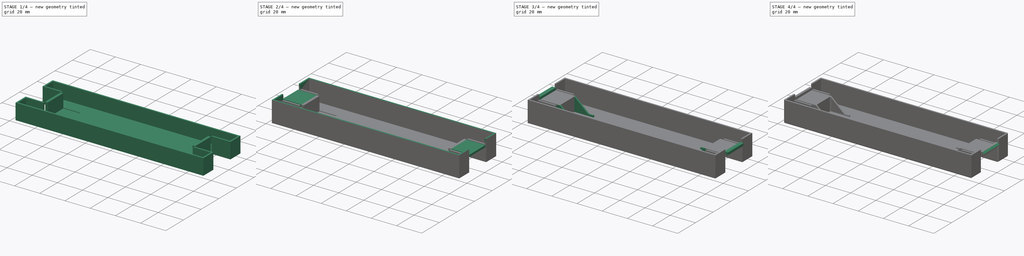
[diagram: build sequence overview — one tinted view per stage of 4, left to right]
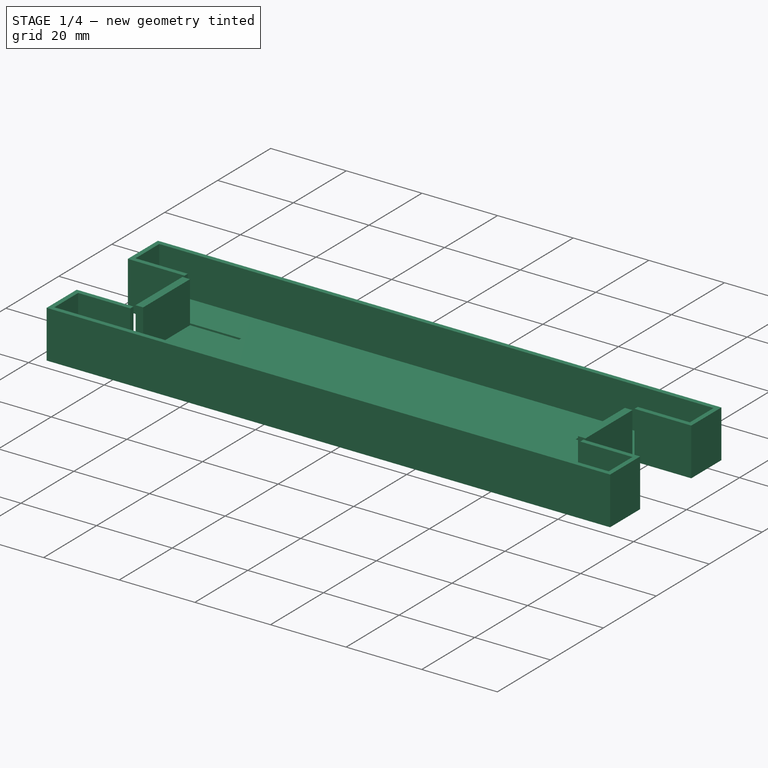
[diagram: stage 1 of 4 — iso view after this stage's code; geometry added in this stage tinted green]
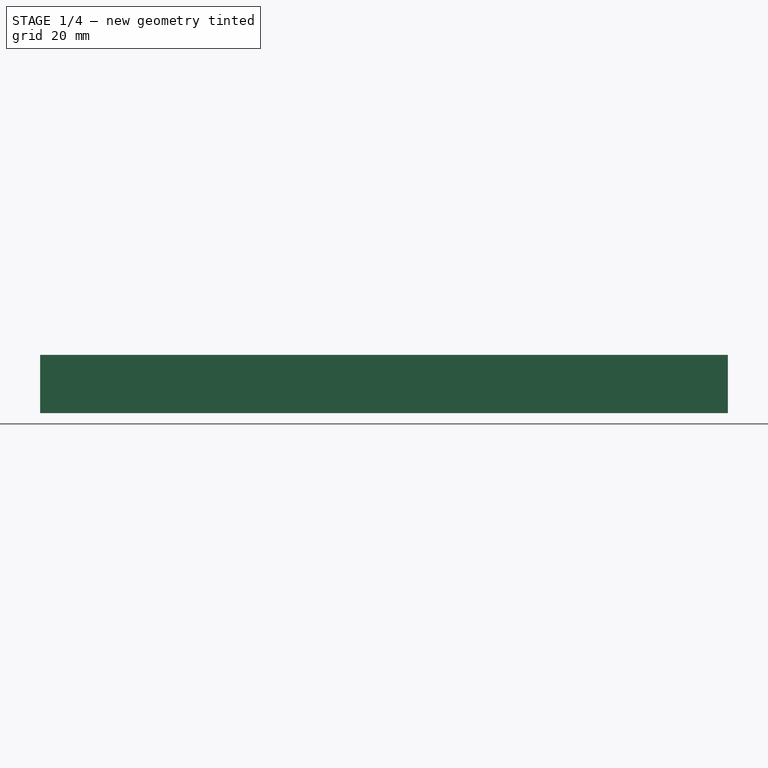
[diagram: stage 1 of 4 — front view after this stage's code; geometry added in this stage tinted green]
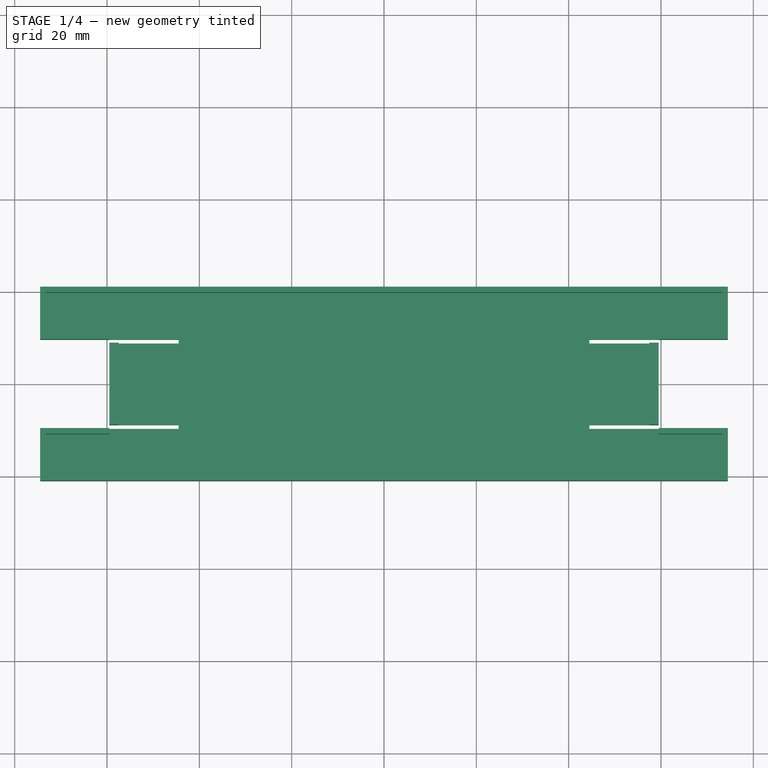
[diagram: stage 1 of 4 — top view after this stage's code; geometry added in this stage tinted green]
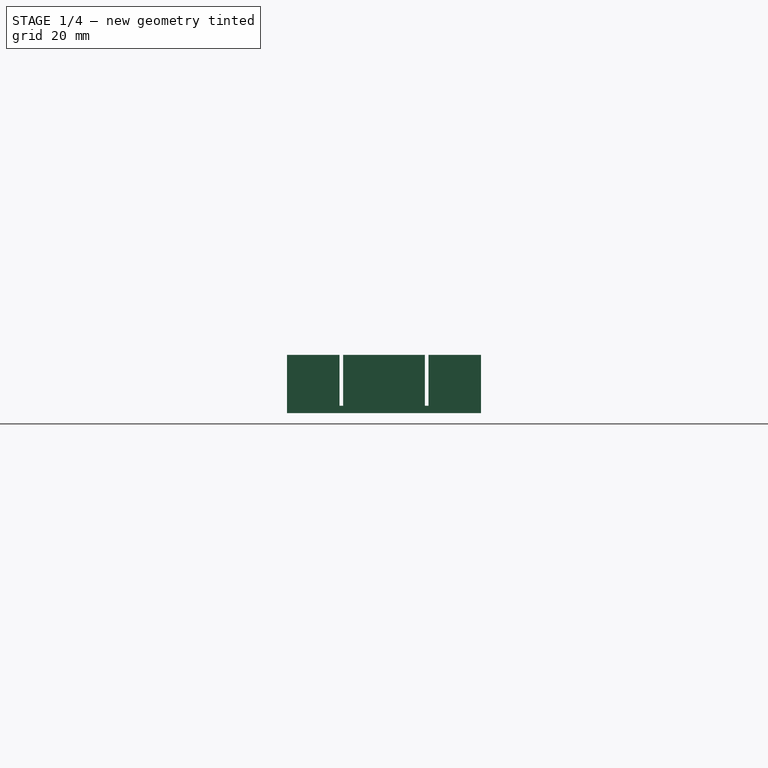
[diagram: stage 1 of 4 — right view after this stage's code; geometry added in this stage tinted green]
FCSTD DOCUMENT  (FreeCAD 1.0R39285 (Git))
Label: PcCaseFrontPanelPlug
License: All rights reserved
LicenseURL: http://en.wikipedia.org/wiki/All_rights_reserved
objects: Sketcher::SketchObject×8, PartDesign::Pad×7, PartDesign::Plane×2, PartDesign::Chamfer×1, PartDesign::Fillet×1, PartDesign::Body×1
note: 46 computed .brp shape members not serialized (recipe doc carries the construction recipe); baked Part::Feature solids carry a one-line shape summary decoded from their .brp

FEATURE [Sketcher::SketchObject] Sketch  label="Template"
  ArcFitTolerance = 0
  AttachmentSupport = -> [XY_Plane]
  FullyConstrained = true
  MakeInternals = false
  MapMode = 5
  sketch-geometry (33):
    g0: LineSegment StartX=-74.5 StartY=21 StartZ=0 EndX=74.5 EndY=21 EndZ=0
    g1: LineSegment StartX=74.5 StartY=-21 StartZ=0 EndX=-74.5 EndY=-21 EndZ=0
    g2: LineSegment StartX=-76 StartY=8.85 StartZ=0 EndX=-74.5 EndY=8.85 EndZ=0
    g3: LineSegment StartX=76 StartY=8.85 StartZ=0 EndX=76 EndY=-8.85 EndZ=0
    g4: LineSegment StartX=76 StartY=-8.85 StartZ=0 EndX=74.5 EndY=-8.85 EndZ=0
    g5: LineSegment StartX=-76 StartY=-8.85 StartZ=0 EndX=-76 EndY=8.85 EndZ=0
    g6: GeomPoint [constr] X=0 Y=0 Z=0
    g7: LineSegment StartX=74.5 StartY=8.85 StartZ=0 EndX=76 EndY=8.85 EndZ=0
    g8: LineSegment StartX=-74.5 StartY=-8.85 StartZ=0 EndX=-76 EndY=-8.85 EndZ=0
    g9: LineSegment StartX=-74.5 StartY=8.85 StartZ=0 EndX=-74.5 EndY=21 EndZ=0
    g10: LineSegment StartX=-74.5 StartY=-21 StartZ=0 EndX=-74.5 EndY=-8.85 EndZ=0
    g11: LineSegment [constr] StartX=-74.5 StartY=-8.85 StartZ=0 EndX=-74.5 EndY=8.85 EndZ=0
    g12: LineSegment StartX=74.5 StartY=21 StartZ=0 EndX=74.5 EndY=8.85 EndZ=0
    g13: LineSegment [constr] StartX=74.5 StartY=8.85 StartZ=0 EndX=74.5 EndY=-8.85 EndZ=0
    g14: LineSegment StartX=74.5 StartY=-8.85 StartZ=0 EndX=74.5 EndY=-21 EndZ=0
    g15: LineSegment StartX=-74.5 StartY=8.85 StartZ=0 EndX=-59.5 EndY=8.85 EndZ=0
    g16: LineSegment StartX=-59.5 StartY=8.85 StartZ=0 EndX=-59.5 EndY=-8.85 EndZ=0
    g17: LineSegment StartX=-59.5 StartY=-8.85 StartZ=0 EndX=-74.5 EndY=-8.85 EndZ=0
    g18: LineSegment StartX=74.5 StartY=8.85 StartZ=0 EndX=59.5 EndY=8.85 EndZ=0
    g19: LineSegment StartX=59.5 StartY=8.85 StartZ=0 EndX=59.5 EndY=-8.85 EndZ=0
    g20: LineSegment StartX=59.5 StartY=-8.85 StartZ=0 EndX=74.5 EndY=-8.85 EndZ=0
    g21: LineSegment StartX=-74.5 StartY=9.65 StartZ=0 EndX=-44.5 EndY=9.65 EndZ=0
    g22: LineSegment StartX=-44.5 StartY=9.65 StartZ=0 EndX=-44.5 EndY=8.85 EndZ=0
    g23: LineSegment StartX=-44.5 StartY=8.85 StartZ=0 EndX=-59.5 EndY=8.85 EndZ=0
    g24: LineSegment StartX=-74.5 StartY=-9.65 StartZ=0 EndX=-44.5 EndY=-9.65 EndZ=0
    g25: LineSegment StartX=-44.5 StartY=-9.65 StartZ=0 EndX=-44.5 EndY=-8.85 EndZ=0
    g26: LineSegment StartX=-44.5 StartY=-8.85 StartZ=0 EndX=-59.5 EndY=-8.85 EndZ=0
    g27: LineSegment StartX=74.5 StartY=9.65 StartZ=0 EndX=44.5 EndY=9.65 EndZ=0
    g28: LineSegment StartX=44.5 StartY=9.65 StartZ=0 EndX=44.5 EndY=8.85 EndZ=0
    g29: LineSegment StartX=44.5 StartY=8.85 StartZ=0 EndX=59.5 EndY=8.85 EndZ=0
    g30: LineSegment StartX=74.5 StartY=-9.65 StartZ=0 EndX=44.5 EndY=-9.65 EndZ=0
    g31: LineSegment StartX=44.5 StartY=-9.65 StartZ=0 EndX=44.5 EndY=-8.85 EndZ=0
    g32: LineSegment StartX=44.5 StartY=-8.85 StartZ=0 EndX=59.5 EndY=-8.85 EndZ=0
  constraints (91):
    c: Coincident(g0,g12)
    c: Coincident(g14,g1)
    c: Coincident(g1,g10)
    c: Coincident(g9,g0)
    c: Horizontal(g0)
    c: Horizontal(g1)
    c: Coincident(g7,g3)
    c: Coincident(g3,g4)
    c: Coincident(g8,g5)
    c: Coincident(g5,g2)
    c: Horizontal(g2)
    c: Horizontal(g4)
    c: Vertical(g3)
    c: Vertical(g5)
    c: DistanceX(g0,g0) = 149
    c: Symmetric(g1,g0,g6)
    c: Symmetric(g8,g7,g6)
    c: DistanceY(g5,g5) = 17.7
    c: DistanceY(g10,g9) = 42
    c: Horizontal(g7)
    c: Horizontal(g8)
    c: Equal(g5,g3)
    c: PointOnObject(g2,g7)
    c: Coincident(g-1,g6)  '__ANCHOR__'
    c: Coincident(g11,g9)
    c: Vertical(g9)
    c: Coincident(g10,g11)
    c: Vertical(g10)
    c: Vertical(g11)
    c: Coincident(g10,g8)
    c: Coincident(g9,g2)
    c: Coincident(g12,g13)
    c: Vertical(g12)
    c: PointOnObject(g4,g12)
    c: Coincident(g13,g14)
    c: Vertical(g14)
    c: Coincident(g4,g13)
    c: Coincident(g12,g7)
    c: Coincident(g2,g15)
    c: Horizontal(g15)
    c: Coincident(g15,g16)
    c: Vertical(g16)
    c: Coincident(g16,g17)
    c: Coincident(g17,g8)
    c: Horizontal(g17)
    c: DistanceX(g15,g15) = 15
    c: Coincident(g7,g18)
    c: Horizontal(g18)
    c: Coincident(g18,g19)
    c: Vertical(g19)
    c: Coincident(g19,g20)
    c: Coincident(g20,g4)
    c: Horizontal(g20)
    c: Equal(g18,g15)
    c: PointOnObject(g21,g9)
    c: Horizontal(g21)
    c: Coincident(g21,g22)
    c: Vertical(g22)
    c: Coincident(g22,g23)
    c: Coincident(g23,g15)
    c: Horizontal(g23)
    c: PointOnObject(g24,g10)
    c: Horizontal(g24)
    c: Coincident(g24,g25)
    c: Vertical(g25)
    c: Coincident(g25,g26)
    c: Coincident(g26,g16)
    c: Horizontal(g26)
    c: Equal(g24,g21)
    c: Equal(g22,g25)
    c: DistanceY(g22,g22) = 0.8
    c: PointOnObject(g27,g12)
    c: Horizontal(g27)
    c: Coincident(g27,g28)
    c: Vertical(g28)
    c: Coincident(g28,g29)
    c: Coincident(g29,g18)
    c: Horizontal(g29)
    c: PointOnObject(g30,g14)
    c: Horizontal(g30)
    c: Coincident(g30,g31)
    c: Vertical(g31)
    c: Coincident(g31,g32)
    c: Coincident(g32,g19)
    c: Horizontal(g32)
    c: Equal(g24,g30)
    c: Equal(g30,g27)
    c: Equal(g25,g31)
    c: Equal(g31,g28)
    c: DistanceX(g2,g0) = 1.5
    c: DistanceX(g15,g21) = 15
FEATURE [Sketcher::SketchObject] Sketch001
  ArcFitTolerance = 0
  AttachmentSupport = -> [XY_Plane]
  ExternalGeometry = -> [Sketch]
  FullyConstrained = true
  MakeInternals = false
  MapMode = 5
  sketch-geometry (20):
    g0: LineSegment StartX=-44.5 StartY=-9.65 StartZ=0 EndX=-74.5 EndY=-9.65 EndZ=0
    g1: LineSegment StartX=-74.5 StartY=-9.65 StartZ=0 EndX=-74.5 EndY=-21 EndZ=0
    g2: LineSegment StartX=-74.5 StartY=-21 StartZ=0 EndX=74.5 EndY=-21 EndZ=0
    g3: LineSegment StartX=74.5 StartY=-21 StartZ=0 EndX=74.5 EndY=-9.65 EndZ=0
    g4: LineSegment StartX=74.5 StartY=-9.65 StartZ=0 EndX=44.5 EndY=-9.65 EndZ=0
    g5: LineSegment StartX=44.5 StartY=-8.85 StartZ=0 EndX=59.5 EndY=-8.85 EndZ=0
    g6: LineSegment StartX=59.5 StartY=-8.85 StartZ=0 EndX=59.5 EndY=8.85 EndZ=0
    g7: LineSegment StartX=59.5 StartY=8.85 StartZ=0 EndX=44.5 EndY=8.85 EndZ=0
    g8: LineSegment StartX=44.5 StartY=9.65 StartZ=0 EndX=74.5 EndY=9.65 EndZ=0
    g9: LineSegment StartX=74.5 StartY=9.65 StartZ=0 EndX=74.5 EndY=21 EndZ=0
    g10: LineSegment StartX=74.5 StartY=21 StartZ=0 EndX=-74.5 EndY=21 EndZ=0
    g11: LineSegment StartX=-74.5 StartY=21 StartZ=0 EndX=-74.5 EndY=9.65 EndZ=0
    g12: LineSegment StartX=-74.5 StartY=9.65 StartZ=0 EndX=-44.5 EndY=9.65 EndZ=0
    g13: LineSegment StartX=-44.5 StartY=8.85 StartZ=0 EndX=-59.5 EndY=8.85 EndZ=0
    g14: LineSegment StartX=-59.5 StartY=8.85 StartZ=0 EndX=-59.5 EndY=-8.85 EndZ=0
    g15: LineSegment StartX=-59.5 StartY=-8.85 StartZ=0 EndX=-44.5 EndY=-8.85 EndZ=0
    g16: LineSegment StartX=-44.5 StartY=8.85 StartZ=0 EndX=-44.5 EndY=9.65 EndZ=0
    g17: LineSegment StartX=-44.5 StartY=-9.65 StartZ=0 EndX=-44.5 EndY=-8.85 EndZ=0
    g18: LineSegment StartX=44.5 StartY=8.85 StartZ=0 EndX=44.5 EndY=9.65 EndZ=0
    g19: LineSegment StartX=44.5 StartY=-9.65 StartZ=0 EndX=44.5 EndY=-8.85 EndZ=0
  constraints (40):
    c: Coincident(g0,g-3)
    c: Coincident(g0,g1)
    c: Coincident(g1,g-9)
    c: Coincident(g1,g2)
    c: Coincident(g2,g-9)
    c: Coincident(g2,g3)
    c: Coincident(g3,g-10)
    c: Coincident(g3,g4)
    c: Coincident(g5,g-12)
    c: Coincident(g5,g6)
    c: Coincident(g6,g-13)
    c: Coincident(g6,g7)
    c: Coincident(g8,g-15)
    c: Coincident(g8,g9)
    c: Coincident(g9,g-16)
    c: Coincident(g9,g10)
    c: Coincident(g10,g-16)
    c: Coincident(g10,g11)
    c: Coincident(g11,g-4)
    c: Coincident(g11,g12)
    c: Coincident(g13,g-5)
    c: Coincident(g13,g14)
    c: Coincident(g14,g-6)
    c: Coincident(g14,g15)
    c: Coincident(g12,g-7)
    c: Coincident(g13,g-7)
    c: Coincident(g16,g13)
    c: Coincident(g16,g12)
    c: Coincident(g15,g-8)
    c: Coincident(g0,g-8)
    c: Coincident(g17,g0)
    c: Coincident(g17,g15)
    c: Coincident(g8,g-15)
    c: Coincident(g7,g-14)
    c: Coincident(g18,g7)
    c: Coincident(g18,g8)
    c: Coincident(g19,g4)
    c: Coincident(g19,g5)
    c: Coincident(g5,g-12)
    c: Coincident(g4,g-11)
FEATURE [PartDesign::Pad] Pad
  Direction = (0,0,1)
  Length = 1.6
  Length2 = 10
  Profile = -> Sketch001
  ReferenceAxis = -> Sketch001 [N_Axis]
  Suppressed = false
  Type = 0
FEATURE [Sketcher::SketchObject] Sketch002
  ArcFitTolerance = 0
  AttachmentOffset = pos=(0,0,1.6) rot=(0,0,1;0rad)
  AttachmentSupport = -> [XY_Plane]
  ExternalGeometry = -> [Sketch]
  FullyConstrained = true
  MakeInternals = false
  MapMode = 5
  Placement = pos=(0,0,1.6) rot=(0,0,1;0rad)
  expr: .AttachmentOffset.Base.z = <<Sketch001>>.AttachmentOffset.Base.z + <<Pad>>.Length
  sketch-geometry (38):
    g0: LineSegment StartX=59.5 StartY=9.65 StartZ=0 EndX=74.5 EndY=9.65 EndZ=0
    g1: LineSegment StartX=74.5 StartY=9.65 StartZ=0 EndX=74.5 EndY=21 EndZ=0
    g2: LineSegment StartX=74.5 StartY=21 StartZ=0 EndX=-74.5 EndY=21 EndZ=0
    g3: LineSegment StartX=-74.5 StartY=21 StartZ=0 EndX=-74.5 EndY=9.65 EndZ=0
    g4: LineSegment StartX=-74.5 StartY=9.65 StartZ=0 EndX=-59.5 EndY=9.65 EndZ=0
    g5: LineSegment StartX=-59.5 StartY=9.65 StartZ=0 EndX=-59.5 EndY=10.85 EndZ=0
    g6: LineSegment StartX=-59.5 StartY=10.85 StartZ=0 EndX=-73.3 EndY=10.85 EndZ=0
    g7: LineSegment StartX=-73.3 StartY=10.85 StartZ=0 EndX=-73.3 EndY=19.8 EndZ=0
    g8: LineSegment StartX=-73.3 StartY=19.8 StartZ=0 EndX=73.3 EndY=19.8 EndZ=0
    g9: LineSegment StartX=73.3 StartY=19.8 StartZ=0 EndX=73.3 EndY=10.85 EndZ=0
    g10: LineSegment StartX=73.3 StartY=10.85 StartZ=0 EndX=59.5 EndY=10.85 EndZ=0
    g11: LineSegment StartX=59.5 StartY=10.85 StartZ=0 EndX=59.5 EndY=9.65 EndZ=0
    g12: LineSegment [constr] StartX=73.3 StartY=10.85 StartZ=0 EndX=74.5 EndY=10.85 EndZ=0
    g13: LineSegment [constr] StartX=73.3 StartY=19.8 StartZ=0 EndX=73.3 EndY=21 EndZ=0
    g14: LineSegment [constr] StartX=-73.3 StartY=19.8 StartZ=0 EndX=-74.5 EndY=19.8 EndZ=0
    g15: LineSegment StartX=-59.5 StartY=-9.65 StartZ=0 EndX=-74.5 EndY=-9.65 EndZ=0
    g16: LineSegment StartX=-74.5 StartY=-9.65 StartZ=0 EndX=-74.5 EndY=-21 EndZ=0
    g17: LineSegment StartX=-74.5 StartY=-21 StartZ=0 EndX=74.5 EndY=-21 EndZ=0
    g18: LineSegment StartX=74.5 StartY=-21 StartZ=0 EndX=74.5 EndY=-9.65 EndZ=0
    g19: LineSegment StartX=74.5 StartY=-9.65 StartZ=0 EndX=59.5 EndY=-9.65 EndZ=0
    g20: LineSegment StartX=59.5 StartY=-9.65 StartZ=0 EndX=59.5 EndY=-10.85 EndZ=0
    g21: LineSegment StartX=59.5 StartY=-10.85 StartZ=0 EndX=73.3 EndY=-10.85 EndZ=0
    g22: LineSegment StartX=73.3 StartY=-10.85 StartZ=0 EndX=73.3 EndY=-19.8 EndZ=0
    g23: LineSegment StartX=73.3 StartY=-19.8 StartZ=0 EndX=-73.3 EndY=-19.8 EndZ=0
    g24: LineSegment StartX=-73.3 StartY=-19.8 StartZ=0 EndX=-73.3 EndY=-10.85 EndZ=0
    g25: LineSegment StartX=-73.3 StartY=-10.85 StartZ=0 EndX=-59.5 EndY=-10.85 EndZ=0
    g26: LineSegment StartX=-59.5 StartY=-10.85 StartZ=0 EndX=-59.5 EndY=-9.65 EndZ=0
    g27: LineSegment [constr] StartX=73.3 StartY=-10.85 StartZ=0 EndX=74.5 EndY=-10.85 EndZ=0
    g28: LineSegment [constr] StartX=73.3 StartY=-19.8 StartZ=0 EndX=73.3 EndY=-21 EndZ=0
    g29: LineSegment [constr] StartX=-73.3 StartY=-19.8 StartZ=0 EndX=-74.5 EndY=-19.8 EndZ=0
    g30: LineSegment StartX=-59.5 StartY=8.85 StartZ=0 EndX=-57.5 EndY=8.85 EndZ=0
    g31: LineSegment StartX=-57.5 StartY=8.85 StartZ=0 EndX=-57.5 EndY=-8.85 EndZ=0
    g32: LineSegment StartX=-57.5 StartY=-8.85 StartZ=0 EndX=-59.5 EndY=-8.85 EndZ=0
    g33: LineSegment StartX=-59.5 StartY=-8.85 StartZ=0 EndX=-59.5 EndY=8.85 EndZ=0
    g34: LineSegment StartX=59.5 StartY=8.85 StartZ=0 EndX=57.5 EndY=8.85 EndZ=0
    g35: LineSegment StartX=57.5 StartY=8.85 StartZ=0 EndX=57.5 EndY=-8.85 EndZ=0
    g36: LineSegment StartX=57.5 StartY=-8.85 StartZ=0 EndX=59.5 EndY=-8.85 EndZ=0
    g37: LineSegment StartX=59.5 StartY=-8.85 StartZ=0 EndX=59.5 EndY=8.85 EndZ=0
  constraints (102):
    c: Coincident(g0,g-5)
    c: Coincident(g0,g1)
    c: Coincident(g1,g-4)
    c: Coincident(g1,g2)
    c: Coincident(g2,g-4)
    c: Coincident(g2,g3)
    c: Coincident(g3,g-3)
    c: Coincident(g3,g4)
    c: Coincident(g4,g5)
    c: Vertical(g5)
    c: Coincident(g5,g6)
    c: Horizontal(g6)
    c: Coincident(g6,g7)
    c: Vertical(g7)
    c: Coincident(g7,g8)
    c: Horizontal(g8)
    c: Coincident(g8,g9)
    c: Vertical(g9)
    c: Coincident(g9,g10)
    c: Horizontal(g10)
    c: Coincident(g10,g11)
    c: Coincident(g11,g0)
    c: Vertical(g11)
    c: Coincident(g12,g9)
    c: PointOnObject(g12,g1)
    c: Horizontal(g12)
    c: Coincident(g13,g8)
    c: PointOnObject(g13,g2)
    c: Vertical(g13)
    c: Coincident(g14,g7)
    c: PointOnObject(g14,g3)
    c: Horizontal(g14)
    c: Equal(g5,g14)
    c: Equal(g14,g13)
    c: Equal(g13,g12)
    c: Equal(g12,g11)
    c: DistanceX(g2,g7) = 1.2  'WallThickness'
    c: Horizontal(g4)
    c: PointOnObject(g4,g-6)
    c: Horizontal(g0)
    c: PointOnObject(g0,g-7)
    c: Coincident(g15,g-10)
    c: Coincident(g15,g16)
    c: Coincident(g16,g-9)
    c: Coincident(g16,g17)
    c: Coincident(g17,g-9)
    c: Coincident(g17,g18)
    c: Coincident(g18,g-8)
    c: Coincident(g18,g19)
    c: Horizontal(g19)
    c: Horizontal(g15)
    c: PointOnObject(g15,g-6)
    c: PointOnObject(g19,g-7)
    c: Coincident(g20,g19)
    c: Vertical(g20)
    c: Coincident(g20,g21)
    c: Horizontal(g21)
    c: Coincident(g21,g22)
    c: Vertical(g22)
    c: Coincident(g22,g23)
    c: Horizontal(g23)
    c: Coincident(g23,g24)
    c: Vertical(g24)
    c: Coincident(g24,g25)
    c: Horizontal(g25)
    c: Coincident(g25,g26)
    c: Coincident(g26,g15)
    c: Vertical(g26)
    c: Coincident(g27,g21)
    c: PointOnObject(g27,g18)
    c: Horizontal(g27)
    c: Coincident(g28,g22)
    c: PointOnObject(g28,g17)
    c: Vertical(g28)
    c: Coincident(g29,g23)
    c: PointOnObject(g29,g16)
    c: Horizontal(g29)
    c: Equal(g11,g20)
    c: Equal(g20,g27)
    c: Equal(g27,g28)
    c: Equal(g28,g29)
    c: Equal(g29,g26)
    c: Coincident(g30,g31)
    c: Coincident(g31,g32)
    c: Coincident(g32,g33)
    c: Coincident(g33,g30)
    c: Horizontal(g30)
    c: Horizontal(g32)
    c: Vertical(g31)
    c: Coincident(g30,g-6)
    c: Coincident(g32,g-6)
    c: Coincident(g34,g35)
    c: Coincident(g35,g36)
    c: Coincident(g36,g37)
    c: Coincident(g37,g34)
    c: Horizontal(g34)
    c: Horizontal(g36)
    c: Vertical(g35)
    c: Coincident(g34,g-7)
    c: Equal(g34,g30)
    c: Coincident(g36,g-7)
    c: DistanceX(g30,g30) = 2
FEATURE [PartDesign::Pad] Pad001
  BaseFeature = -> Pad
  Direction = (0,0,1)
  Length = 11
  Length2 = 10
  Profile = -> Sketch002
  ReferenceAxis = -> Sketch002 [N_Axis]
  Suppressed = false
  Type = 0
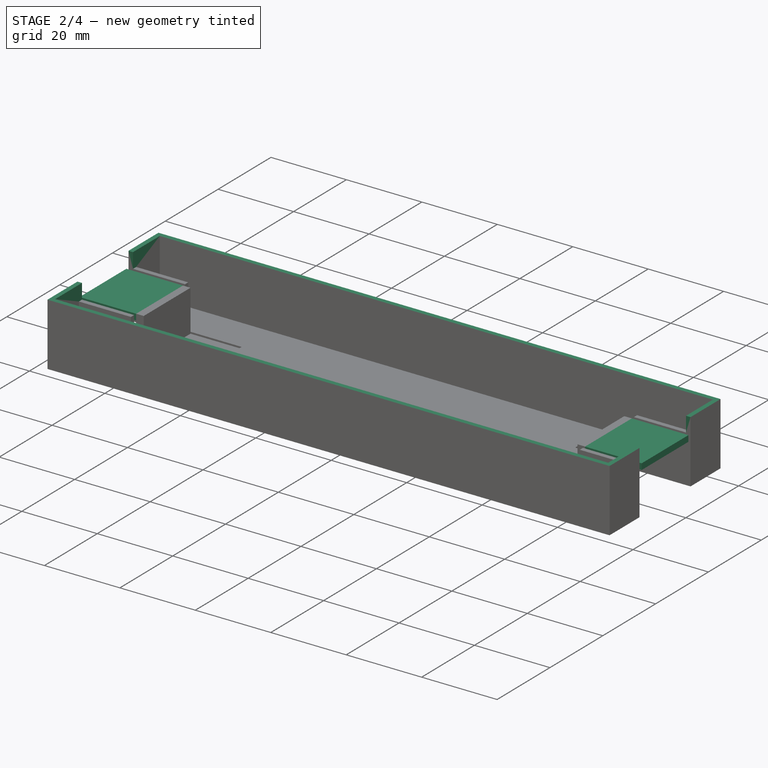
[diagram: stage 2 of 4 — iso view after this stage's code; geometry added in this stage tinted green]
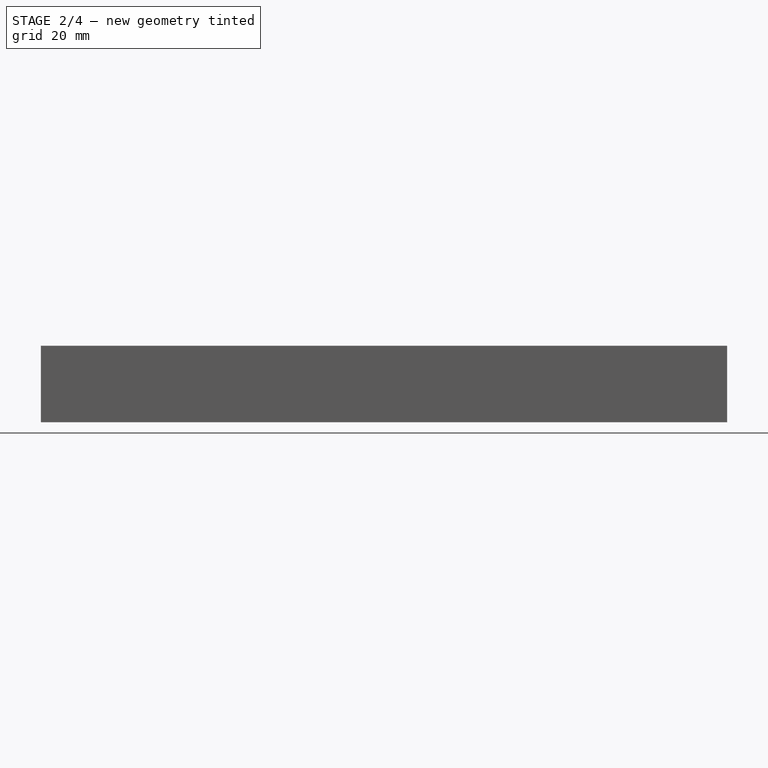
[diagram: stage 2 of 4 — front view after this stage's code; geometry added in this stage tinted green]
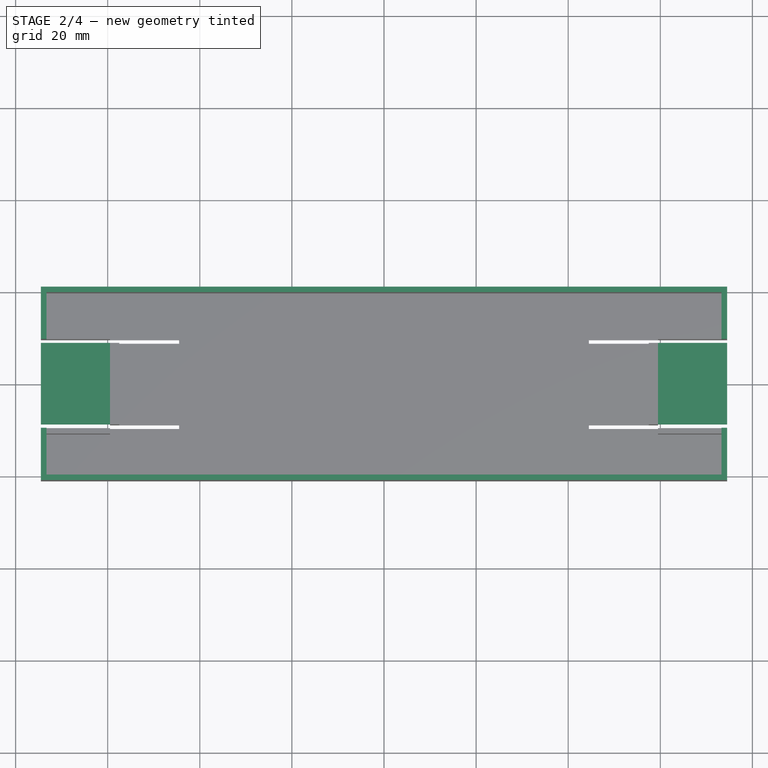
[diagram: stage 2 of 4 — top view after this stage's code; geometry added in this stage tinted green]
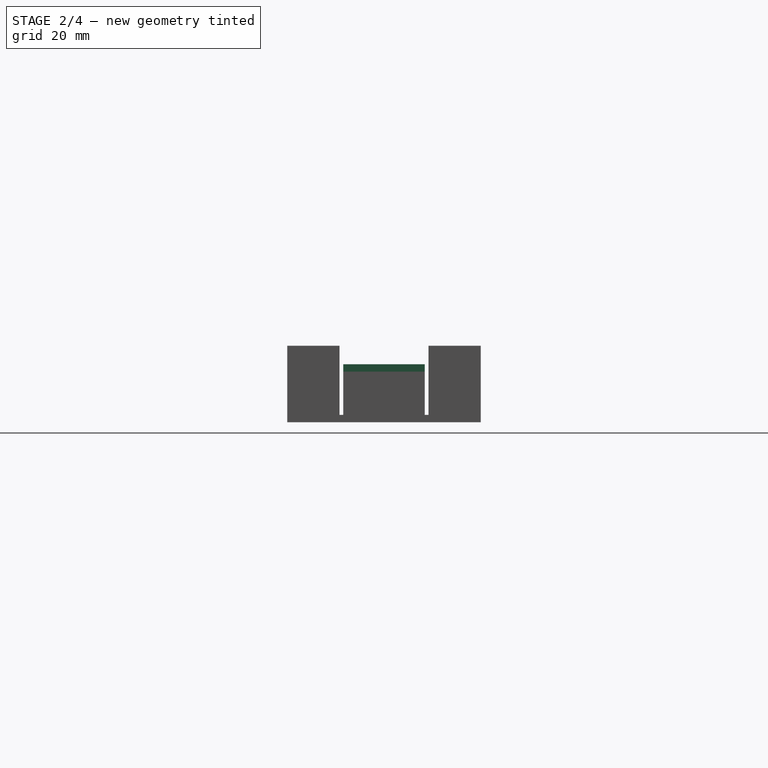
[diagram: stage 2 of 4 — right view after this stage's code; geometry added in this stage tinted green]
FEATURE [Sketcher::SketchObject] Sketch003
  ArcFitTolerance = 0
  AttachmentOffset = pos=(0,0,12.6) rot=(0,0,1;0rad)
  AttachmentSupport = -> [XY_Plane]
  ExternalGeometry = -> [Sketch,Sketch002]
  FullyConstrained = true
  MakeInternals = false
  MapMode = 5
  Placement = pos=(0,0,12.6) rot=(0,0,1;0rad)
  expr: .AttachmentOffset.Base.z = <<Sketch002>>.AttachmentOffset.Base.z + <<Pad001>>.Length
  sketch-geometry (16):
    g0: LineSegment StartX=-74.5 StartY=9.65 StartZ=0 EndX=-74.5 EndY=21 EndZ=0
    g1: LineSegment StartX=-74.5 StartY=21 StartZ=0 EndX=74.5 EndY=21 EndZ=0
    g2: LineSegment StartX=74.5 StartY=21 StartZ=0 EndX=74.5 EndY=9.65 EndZ=0
    g3: LineSegment StartX=74.5 StartY=9.65 StartZ=0 EndX=73.3 EndY=9.65 EndZ=0
    g4: LineSegment StartX=73.3 StartY=9.65 StartZ=0 EndX=73.3 EndY=19.8 EndZ=0
    g5: LineSegment StartX=73.3 StartY=19.8 StartZ=0 EndX=-73.3 EndY=19.8 EndZ=0
    g6: LineSegment StartX=-73.3 StartY=19.8 StartZ=0 EndX=-73.3 EndY=9.65 EndZ=0
    g7: LineSegment StartX=-73.3 StartY=9.65 StartZ=0 EndX=-74.5 EndY=9.65 EndZ=0
    g8: LineSegment StartX=-74.5 StartY=-9.65 StartZ=0 EndX=-74.5 EndY=-21 EndZ=0
    g9: LineSegment StartX=-74.5 StartY=-21 StartZ=0 EndX=74.5 EndY=-21 EndZ=0
    g10: LineSegment StartX=74.5 StartY=-21 StartZ=0 EndX=74.5 EndY=-9.65 EndZ=0
    g11: LineSegment StartX=74.5 StartY=-9.65 StartZ=0 EndX=73.3 EndY=-9.65 EndZ=0
    g12: LineSegment StartX=73.3 StartY=-9.65 StartZ=0 EndX=73.3 EndY=-19.8 EndZ=0
    g13: LineSegment StartX=73.3 StartY=-19.8 StartZ=0 EndX=-73.3 EndY=-19.8 EndZ=0
    g14: LineSegment StartX=-73.3 StartY=-19.8 StartZ=0 EndX=-73.3 EndY=-9.65 EndZ=0
    g15: LineSegment StartX=-73.3 StartY=-9.65 StartZ=0 EndX=-74.5 EndY=-9.65 EndZ=0
  constraints (36):
    c: Coincident(g-4,g0)
    c: Coincident(g0,g-6)
    c: Coincident(g0,g1)
    c: Coincident(g1,g-6)
    c: Coincident(g1,g2)
    c: Coincident(g2,g-3)
    c: Coincident(g2,g3)
    c: PointOnObject(g3,g-3)
    c: Coincident(g3,g4)
    c: Coincident(g4,g-12)
    c: Vertical(g4)
    c: Coincident(g4,g5)
    c: Coincident(g5,g-9)
    c: Coincident(g5,g6)
    c: PointOnObject(g6,g-4)
    c: Vertical(g6)
    c: Coincident(g6,g7)
    c: Coincident(g7,g0)
    c: Coincident(g-5,g8)
    c: Coincident(g8,g-8)
    c: Coincident(g8,g9)
    c: Coincident(g9,g-8)
    c: Coincident(g9,g10)
    c: Coincident(g10,g-7)
    c: PointOnObject(g11,g-7)
    c: Coincident(g11,g12)
    c: Coincident(g12,g-11)
    c: Vertical(g12)
    c: Coincident(g12,g13)
    c: Coincident(g13,g-10)
    c: Coincident(g13,g14)
    c: PointOnObject(g14,g-5)
    c: Vertical(g14)
    c: Coincident(g14,g15)
    c: Coincident(g15,g8)
    c: Coincident(g10,g11)
FEATURE [PartDesign::Pad] Pad002
  BaseFeature = -> Pad001
  Direction = (0,0,1)
  Length = 4
  Length2 = 10
  Profile = -> Sketch003
  ReferenceAxis = -> Sketch003 [N_Axis]
  Refine = true
  Suppressed = false
  Type = 0
FEATURE [Sketcher::SketchObject] Sketch004
  ArcFitTolerance = 0
  AttachmentOffset = pos=(0,0,12.6) rot=(0,0,1;0rad)
  AttachmentSupport = -> [XY_Plane]
  ExternalGeometry = -> [Sketch]
  FullyConstrained = true
  MakeInternals = false
  MapMode = 5
  Placement = pos=(0,0,12.6) rot=(0,0,1;0rad)
  expr: .AttachmentOffset.Base.z = <<Sketch003>>.AttachmentOffset.Base.z
  sketch-geometry (8):
    g0: LineSegment StartX=-74.5 StartY=8.85 StartZ=0 EndX=-59.5 EndY=8.85 EndZ=0
    g1: LineSegment StartX=-59.5 StartY=8.85 StartZ=0 EndX=-59.5 EndY=-8.85 EndZ=0
    g2: LineSegment StartX=-59.5 StartY=-8.85 StartZ=0 EndX=-74.5 EndY=-8.85 EndZ=0
    g3: LineSegment StartX=-74.5 StartY=-8.85 StartZ=0 EndX=-74.5 EndY=8.85 EndZ=0
    g4: LineSegment StartX=59.5 StartY=8.85 StartZ=0 EndX=74.5 EndY=8.85 EndZ=0
    g5: LineSegment StartX=74.5 StartY=8.85 StartZ=0 EndX=74.5 EndY=-8.85 EndZ=0
    g6: LineSegment StartX=74.5 StartY=-8.85 StartZ=0 EndX=59.5 EndY=-8.85 EndZ=0
    g7: LineSegment StartX=59.5 StartY=-8.85 StartZ=0 EndX=59.5 EndY=8.85 EndZ=0
  constraints (16):
    c: Coincident(g0,g1)
    c: Coincident(g1,g2)
    c: Coincident(g2,g3)
    c: Coincident(g3,g0)
    c: Coincident(g1,g-3)
    c: Coincident(g0,g-3)
    c: Coincident(g4,g5)
    c: Coincident(g5,g6)
    c: Coincident(g6,g7)
    c: Coincident(g7,g4)
    c: Coincident(g4,g-4)
    c: Coincident(g6,g-4)
    c: Coincident(g0,g-7)
    c: Coincident(g2,g-8)
    c: Coincident(g4,g-5)
    c: Coincident(g5,g-6)
FEATURE [PartDesign::Pad] Pad003
  BaseFeature = -> Pad002
  Direction = (0,0,1)
  Length = 1.6
  Length2 = 10
  Profile = -> Sketch004
  ReferenceAxis = -> Sketch004 [N_Axis]
  Reversed = true
  Suppressed = false
  Type = 0
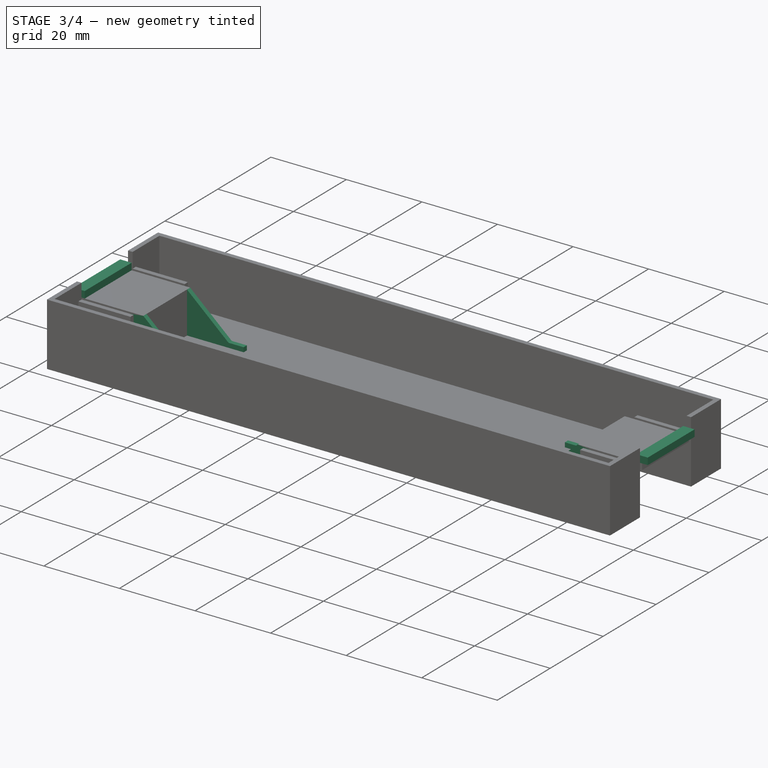
[diagram: stage 3 of 4 — iso view after this stage's code; geometry added in this stage tinted green]
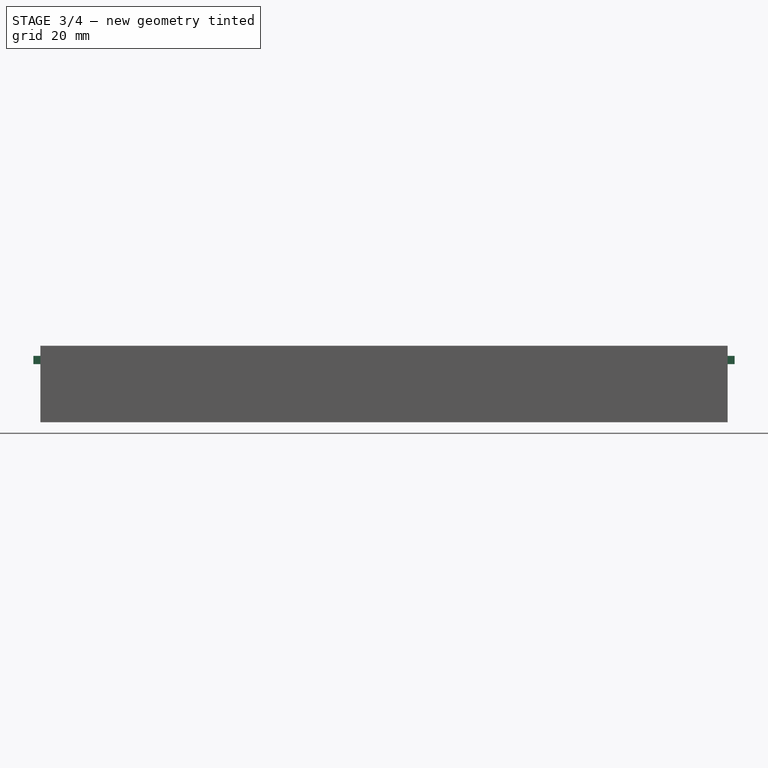
[diagram: stage 3 of 4 — front view after this stage's code; geometry added in this stage tinted green]
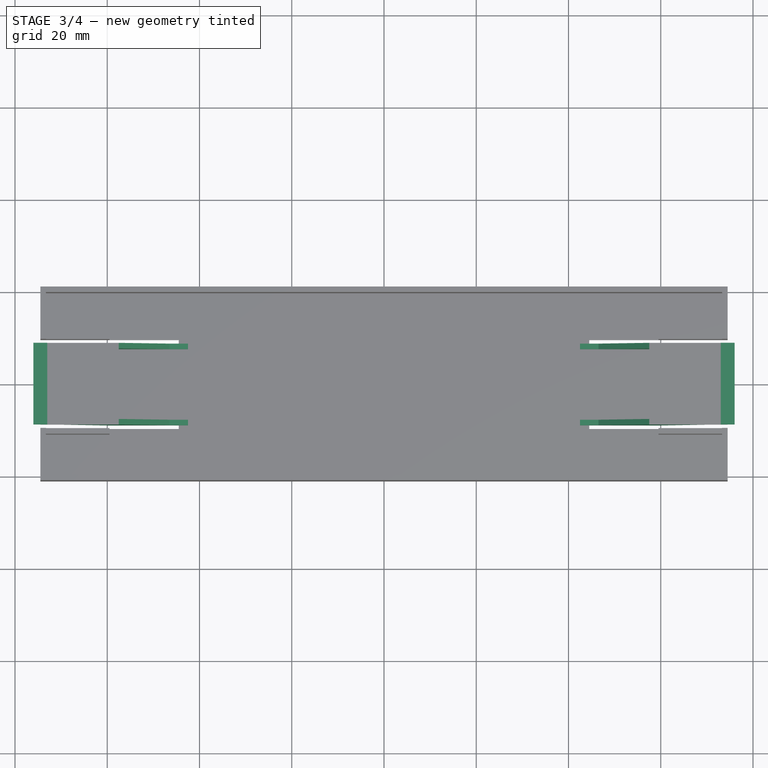
[diagram: stage 3 of 4 — top view after this stage's code; geometry added in this stage tinted green]
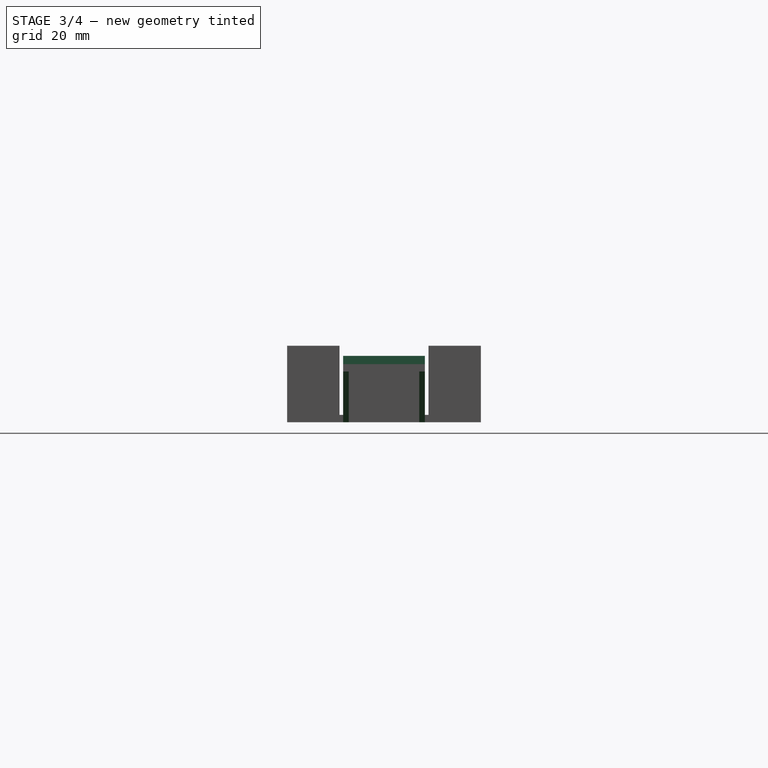
[diagram: stage 3 of 4 — right view after this stage's code; geometry added in this stage tinted green]
FEATURE [Sketcher::SketchObject] Sketch005
  ArcFitTolerance = 0
  AttachmentOffset = pos=(0,0,12.6) rot=(0,0,1;0rad)
  AttachmentSupport = -> [XY_Plane]
  ExternalGeometry = -> [Sketch]
  FullyConstrained = true
  MakeInternals = false
  MapMode = 5
  Placement = pos=(0,0,12.6) rot=(0,0,1;0rad)
  expr: .AttachmentOffset.Base.z = <<Sketch004>>.AttachmentOffset.Base.z
  sketch-geometry (8):
    g0: LineSegment StartX=-76 StartY=8.85 StartZ=0 EndX=-73 EndY=8.85 EndZ=0
    g1: LineSegment StartX=-73 StartY=8.85 StartZ=0 EndX=-73 EndY=-8.85 EndZ=0
    g2: LineSegment StartX=-73 StartY=-8.85 StartZ=0 EndX=-76 EndY=-8.85 EndZ=0
    g3: LineSegment StartX=-76 StartY=-8.85 StartZ=0 EndX=-76 EndY=8.85 EndZ=0
    g4: LineSegment StartX=76 StartY=8.85 StartZ=0 EndX=73 EndY=8.85 EndZ=0
    g5: LineSegment StartX=73 StartY=8.85 StartZ=0 EndX=73 EndY=-8.85 EndZ=0
    g6: LineSegment StartX=73 StartY=-8.85 StartZ=0 EndX=76 EndY=-8.85 EndZ=0
    g7: LineSegment StartX=76 StartY=-8.85 StartZ=0 EndX=76 EndY=8.85 EndZ=0
  constraints (18):
    c: Coincident(g0,g1)
    c: Coincident(g1,g2)
    c: Coincident(g2,g3)
    c: Coincident(g3,g0)
    c: Horizontal(g2)
    c: Vertical(g1)
    c: Coincident(g0,g-4)
    c: Coincident(g2,g-4)
    c: Symmetric(g0,g0,g-3)
    c: Coincident(g4,g5)
    c: Coincident(g5,g6)
    c: Coincident(g6,g7)
    c: Coincident(g7,g4)
    c: Horizontal(g6)
    c: Vertical(g5)
    c: Coincident(g4,g-7)
    c: Coincident(g6,g-7)
    c: Symmetric(g4,g4,g-6)
FEATURE [PartDesign::Pad] Pad004
  BaseFeature = -> Pad003
  Direction = (0,0,1)
  Length = 1.8
  Length2 = 10
  Profile = -> Sketch005
  ReferenceAxis = -> Sketch005 [N_Axis]
  Refine = true
  Suppressed = false
  Type = 0
FEATURE [PartDesign::Plane] DatumPlane
  AttachmentSupport = -> [Sketch]
  Length = 169.436
  MapMode = 7
  Placement = pos=(59.5,8.85,0) rot=(0,0.707107,0.707107;3.14159rad)
  ResizeMode = 0
  Width = 67.4356
FEATURE [Sketcher::SketchObject] Sketch006
  ArcFitTolerance = 0
  AttachmentSupport = -> [DatumPlane]
  ExternalGeometry = -> [Sketch,Sketch002]
  FullyConstrained = true
  MakeInternals = false
  MapMode = 5
  Placement = pos=(59.5,8.85,0) rot=(0,0.707107,0.707107;3.14159rad)
  expr: Constraints[11] = <<Pad003>>.Length
  expr: Constraints[5] = <<Pad001>>.Length
  sketch-geometry (17):
    g0: LineSegment StartX=2 StartY=1.6 StartZ=0 EndX=17 EndY=1.6 EndZ=0
    g1: LineSegment StartX=13 StartY=2.8 StartZ=0 EndX=2 EndY=12.6 EndZ=0
    g2: LineSegment StartX=2 StartY=12.6 StartZ=0 EndX=2 EndY=1.6 EndZ=0
    g3: LineSegment StartX=0 StartY=0 StartZ=0 EndX=0 EndY=11 EndZ=0
    g4: LineSegment StartX=0 StartY=11 StartZ=0 EndX=-11 EndY=11 EndZ=0
    g5: LineSegment StartX=-11 StartY=11 StartZ=0 EndX=0 EndY=0 EndZ=0
    g6: LineSegment StartX=119 StartY=0 StartZ=0 EndX=119 EndY=11 EndZ=0
    g7: LineSegment StartX=119 StartY=11 StartZ=0 EndX=130 EndY=11 EndZ=0
    g8: LineSegment StartX=130 StartY=11 StartZ=0 EndX=119 EndY=0 EndZ=0
    g9: LineSegment StartX=102 StartY=1.6 StartZ=0 EndX=117 EndY=1.6 EndZ=0
    g10: LineSegment StartX=117 StartY=1.6 StartZ=0 EndX=117 EndY=12.6 EndZ=0
    g11: LineSegment StartX=117 StartY=12.6 StartZ=0 EndX=106 EndY=2.8 EndZ=0
    g12: LineSegment StartX=13 StartY=2.8 StartZ=0 EndX=17 EndY=2.8 EndZ=0
    g13: LineSegment StartX=17 StartY=1.6 StartZ=0 EndX=17 EndY=2.8 EndZ=0
    g14: LineSegment [constr] StartX=15 StartY=0 StartZ=0 EndX=15 EndY=2.8 EndZ=0
    g15: LineSegment StartX=106 StartY=2.8 StartZ=0 EndX=102 EndY=2.8 EndZ=0
    g16: LineSegment StartX=102 StartY=2.8 StartZ=0 EndX=102 EndY=1.6 EndZ=0
  constraints (46):
    c: Horizontal(g0)
    c: Coincident(g2,g1)
    c: Coincident(g2,g0)
    c: Vertical(g2)
    c: Coincident(g0,g-7)
    c: DistanceY(g0,g1) = 11
    c: Vertical(g3)
    c: Coincident(g3,g4)
    c: Horizontal(g4)
    c: Coincident(g4,g5)
    c: Coincident(g5,g3)
    c: DistanceY(g3,g1) = 1.6
    c: Vertical(g6)
    c: Coincident(g6,g7)
    c: Horizontal(g7)
    c: Coincident(g7,g8)
    c: Coincident(g8,g6)
    c: Horizontal(g9)
    c: Coincident(g9,g10)
    c: Vertical(g10)
    c: Coincident(g10,g11)
    c: Equal(g7,g4)
    c: Equal(g6,g3)
    c: Coincident(g9,g-8)
    c: Equal(g10,g2)
    c: Equal(g9,g0)
    c: Coincident(g-5,g3)
    c: Coincident(g6,g-6)
    c: Equal(g3,g4)
    c: DistanceX(g1,g-3) = 2
    c: Coincident(g12,g1)
    c: Horizontal(g12)
    c: Coincident(g13,g0)
    c: Coincident(g13,g12)
    c: Vertical(g13)
    c: Coincident(g14,g-3)
    c: Vertical(g14)
    c: Symmetric(g1,g12,g14)
    c: DistanceY(g13,g13) = 1.2
    c: Equal(g11,g1)
    c: Coincident(g15,g11)
    c: Horizontal(g15)
    c: Coincident(g16,g15)
    c: Coincident(g16,g9)
    c: Vertical(g16)
    c: Equal(g15,g12)
FEATURE [PartDesign::Pad] Pad005
  BaseFeature = -> Pad004
  Direction = (0,1,-2e-16)
  Length = 1.2
  Length2 = 10
  Profile = -> Sketch006
  ReferenceAxis = -> Sketch006 [N_Axis]
  Reversed = true
  Suppressed = false
  Type = 0
FEATURE [PartDesign::Plane] DatumPlane001
  AttachmentSupport = -> [Sketch]
  Length = 169.436
  MapMode = 7
  Placement = pos=(59.5,-8.85,0) rot=(0,0.707107,0.707107;3.14159rad)
  ResizeMode = 0
  Width = 67.4356
FEATURE [Sketcher::SketchObject] Sketch007
  ArcFitTolerance = 0
  AttachmentSupport = -> [DatumPlane001]
  ExternalGeometry = -> [Sketch,Sketch002]
  FullyConstrained = true
  MakeInternals = false
  MapMode = 5
  Placement = pos=(59.5,-8.85,0) rot=(0,0.707107,0.707107;3.14159rad)
  expr: Constraints[11] = <<Pad003>>.Length
  expr: Constraints[5] = <<Pad001>>.Length
  sketch-geometry (17):
    g0: LineSegment StartX=2 StartY=1.6 StartZ=0 EndX=17 EndY=1.6 EndZ=0
    g1: LineSegment StartX=13 StartY=2.8 StartZ=0 EndX=2 EndY=12.6 EndZ=0
    g2: LineSegment StartX=2 StartY=12.6 StartZ=0 EndX=2 EndY=1.6 EndZ=0
    g3: LineSegment StartX=0 StartY=0 StartZ=0 EndX=0 EndY=11 EndZ=0
    g4: LineSegment StartX=0 StartY=11 StartZ=0 EndX=-11 EndY=11 EndZ=0
    g5: LineSegment StartX=-11 StartY=11 StartZ=0 EndX=0 EndY=0 EndZ=0
    g6: LineSegment StartX=119 StartY=0 StartZ=0 EndX=119 EndY=11 EndZ=0
    g7: LineSegment StartX=119 StartY=11 StartZ=0 EndX=130 EndY=11 EndZ=0
    g8: LineSegment StartX=130 StartY=11 StartZ=0 EndX=119 EndY=0 EndZ=0
    g9: LineSegment StartX=102 StartY=1.6 StartZ=0 EndX=117 EndY=1.6 EndZ=0
    g10: LineSegment StartX=117 StartY=1.6 StartZ=0 EndX=117 EndY=12.6 EndZ=0
    g11: LineSegment StartX=117 StartY=12.6 StartZ=0 EndX=106 EndY=2.8 EndZ=0
    g12: LineSegment StartX=13 StartY=2.8 StartZ=0 EndX=17 EndY=2.8 EndZ=0
    g13: LineSegment StartX=17 StartY=1.6 StartZ=0 EndX=17 EndY=2.8 EndZ=0
    g14: LineSegment [constr] StartX=15 StartY=0 StartZ=0 EndX=15 EndY=2.8 EndZ=0
    g15: LineSegment StartX=106 StartY=2.8 StartZ=0 EndX=102 EndY=2.8 EndZ=0
    g16: LineSegment StartX=102 StartY=2.8 StartZ=0 EndX=102 EndY=1.6 EndZ=0
  constraints (46):
    c: Horizontal(g0)
    c: Coincident(g2,g1)
    c: Coincident(g2,g0)
    c: Vertical(g2)
    c: Coincident(g0,g-7)
    c: DistanceY(g0,g1) = 11
    c: Vertical(g3)
    c: Coincident(g3,g4)
    c: Horizontal(g4)
    c: Coincident(g4,g5)
    c: Coincident(g5,g3)
    c: DistanceY(g3,g1) = 1.6
    c: Vertical(g6)
    c: Coincident(g6,g7)
    c: Horizontal(g7)
    c: Coincident(g7,g8)
    c: Coincident(g8,g6)
    c: Horizontal(g9)
    c: Coincident(g9,g10)
    c: Vertical(g10)
    c: Coincident(g10,g11)
    c: Equal(g7,g4)
    c: Equal(g6,g3)
    c: Coincident(g9,g-8)
    c: Equal(g10,g2)
    c: Equal(g9,g0)
    c: Coincident(g-5,g3)
    c: Coincident(g6,g-6)
    c: Equal(g3,g4)
    c: DistanceX(g1,g-3) = 2
    c: Coincident(g12,g1)
    c: Horizontal(g12)
    c: Coincident(g13,g0)
    c: Coincident(g13,g12)
    c: Vertical(g13)
    c: Coincident(g14,g-3)
    c: Vertical(g14)
    c: Symmetric(g1,g12,g14)
    c: DistanceY(g13,g13) = 1.2
    c: Equal(g11,g1)
    c: Coincident(g15,g11)
    c: Horizontal(g15)
    c: Coincident(g16,g15)
    c: Coincident(g16,g9)
    c: Vertical(g16)
    c: Equal(g15,g12)
FEATURE [PartDesign::Pad] Pad006
  BaseFeature = -> Pad005
  Direction = (0,1,-2e-16)
  Length = 1.2
  Length2 = 10
  Profile = -> Sketch007
  ReferenceAxis = -> Sketch007 [N_Axis]
  Refine = true
  Suppressed = false
  Type = 0
  expr: Length = <<Pad005>>.Length
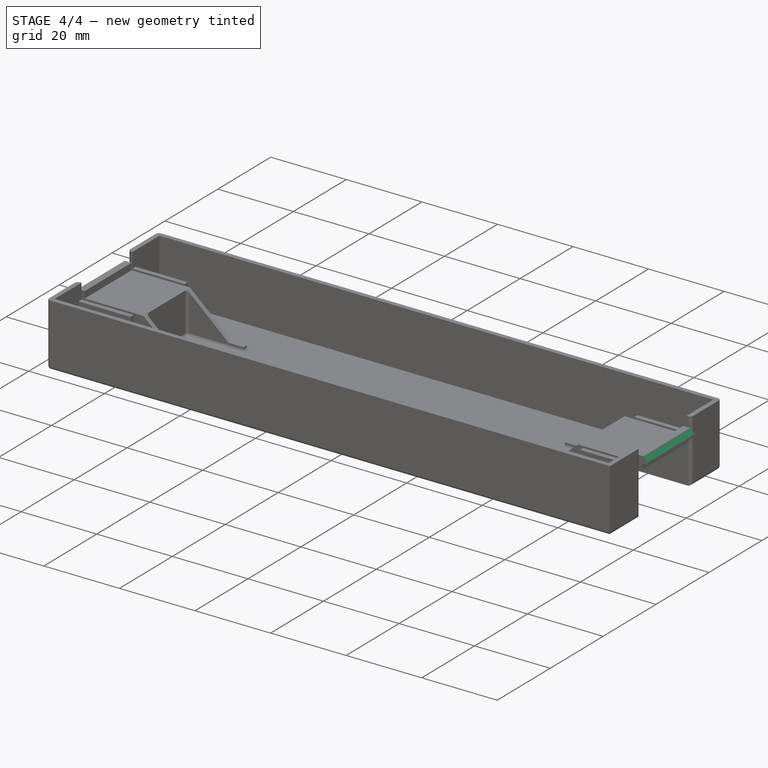
[diagram: stage 4 of 4 — iso view after this stage's code; geometry added in this stage tinted green]
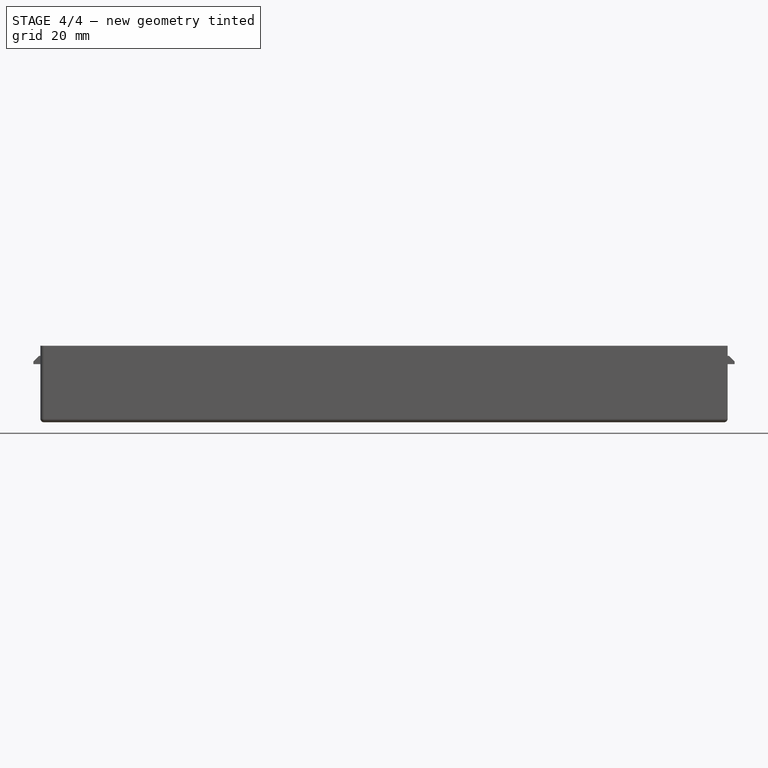
[diagram: stage 4 of 4 — front view after this stage's code; geometry added in this stage tinted green]
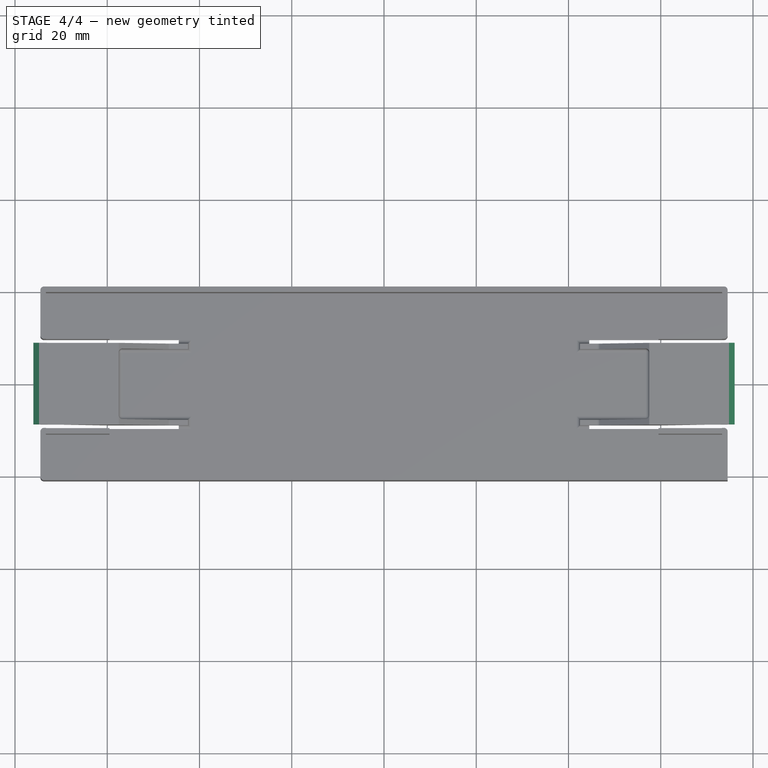
[diagram: stage 4 of 4 — top view after this stage's code; geometry added in this stage tinted green]
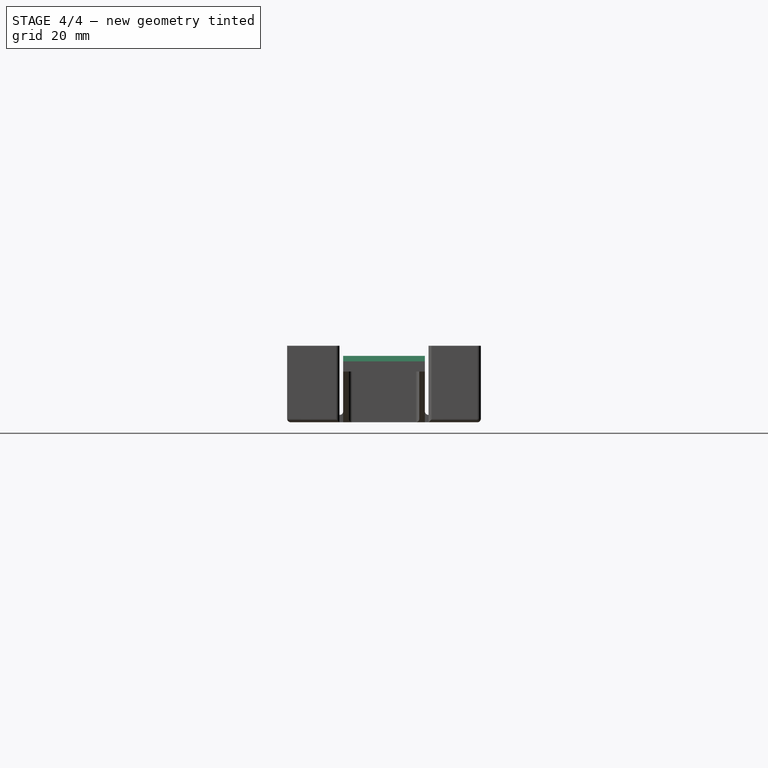
[diagram: stage 4 of 4 — right view after this stage's code; geometry added in this stage tinted green]
FEATURE [PartDesign::Chamfer] Chamfer
  Angle = 45
  Base = -> Pad006 [Edge12,Edge173]
  BaseFeature = -> Pad006
  ChamferType = 0
  FlipDirection = false
  Refine = true
  Size = 1.2
  Size2 = 1
  SupportTransform = false
  Suppressed = false
  UseAllEdges = false
FEATURE [PartDesign::Fillet] Fillet
  Base = -> Chamfer [Edge16,Edge86,Edge85,Edge81,Edge82,Edge83,Edge67,Edge50,Edge65,Edge66,Edge68,Edge34,Edge80,Edge84,Edge221,Edge223,Edge105,Edge126,Edge170,Edge94,Edge216,Edge104,Edge95,Edge211,Edge213,Edge103,Edge144,Edge96,Edge151,Edge119,Edge118,Edge45,Edge49,Edge209,Edge214,Edge192,Edge117,Edge116,Edge188,Edge234,+3 more]
  BaseFeature = -> Chamfer
  Radius = 0.8
  Refine = true
  SupportTransform = false
  Suppressed = false
  UseAllEdges = false
FEATURE [PartDesign::Body] Body
  AllowCompound = false
  Group = -> [Sketch,Sketch001,Pad,Sketch002,Pad001,Sketch003,Pad002,Sketch004,Pad003,Sketch005,Pad004,DatumPlane,Sketch006,Pad005,DatumPlane001,Sketch007,Pad006,Chamfer,Fillet]
  Origin = -> Origin
  Tip = -> Fillet
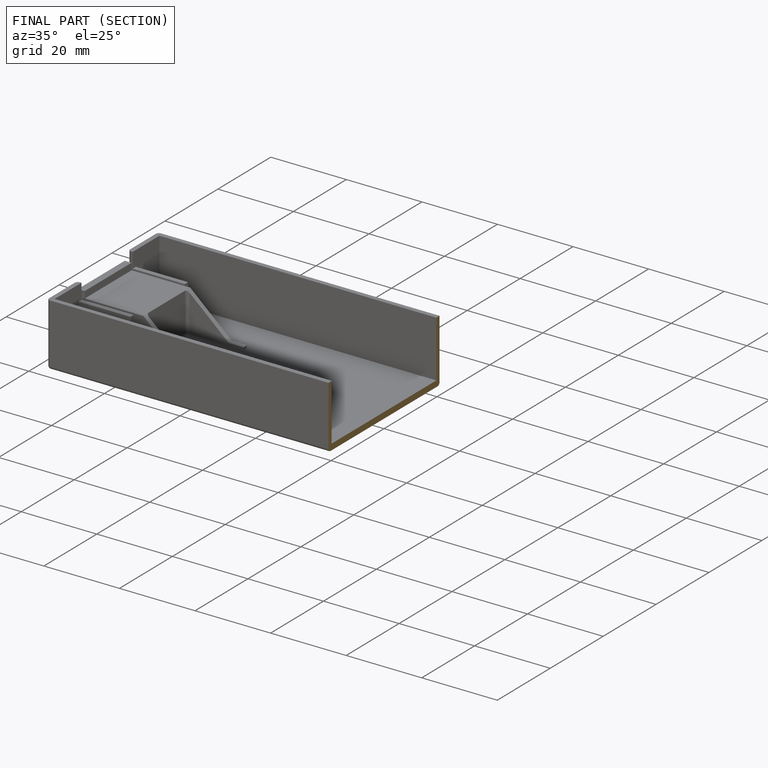
[diagram: finished part — half-section view (interior)]
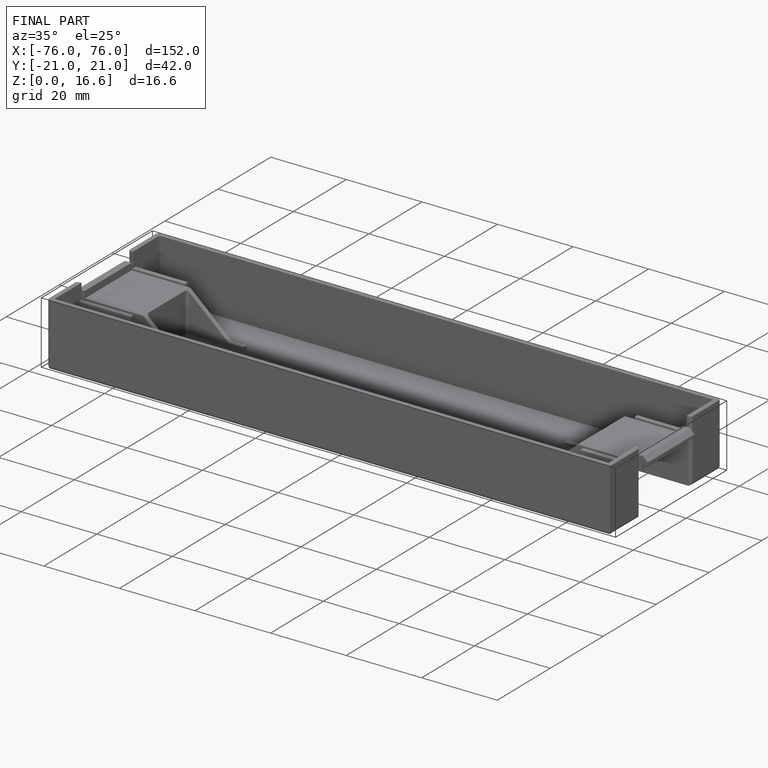
[diagram: finished part — iso view with bounding-box wireframe]
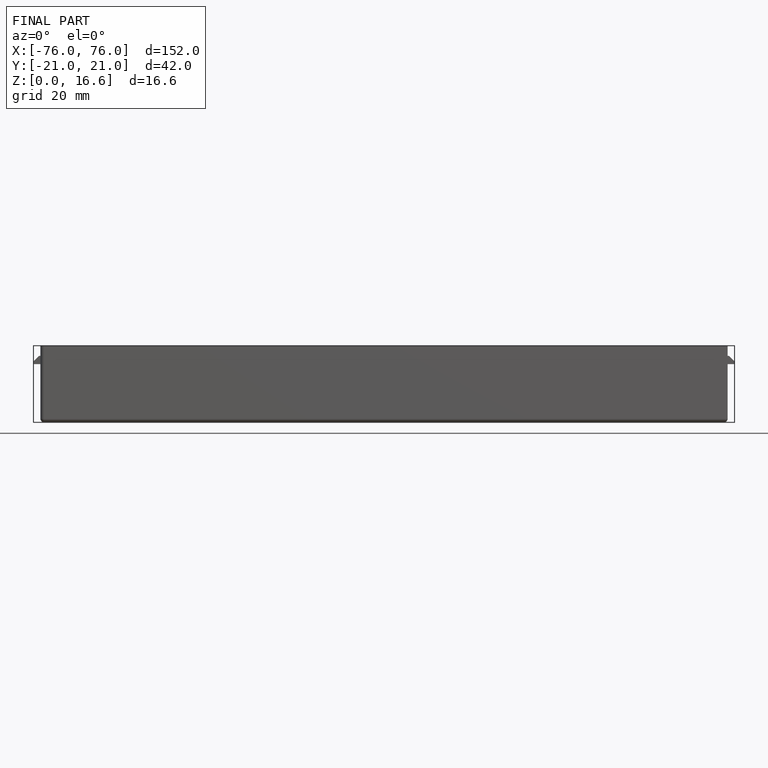
[diagram: finished part — front view with bounding-box wireframe]
